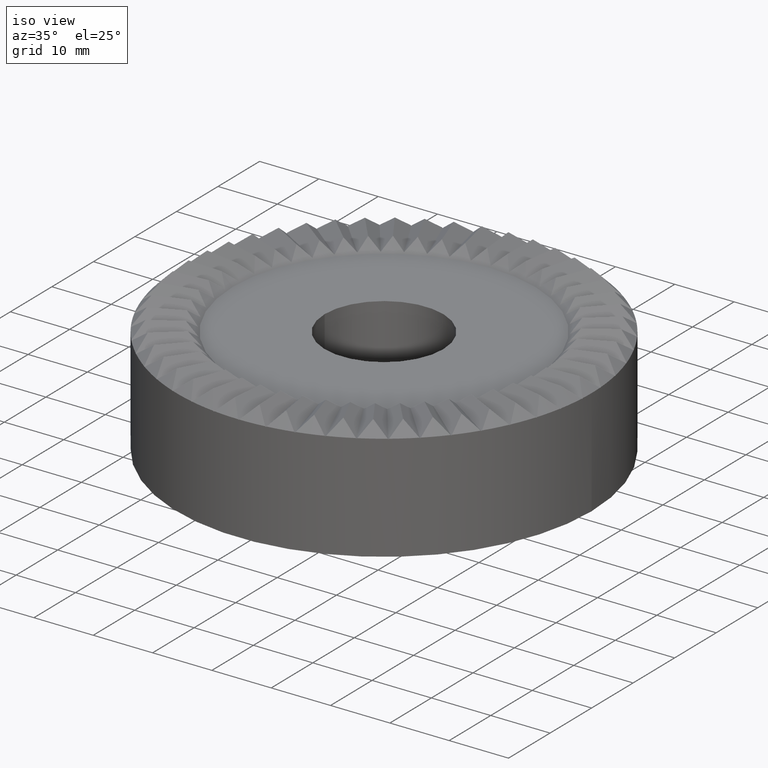
[diagram: clean part render]
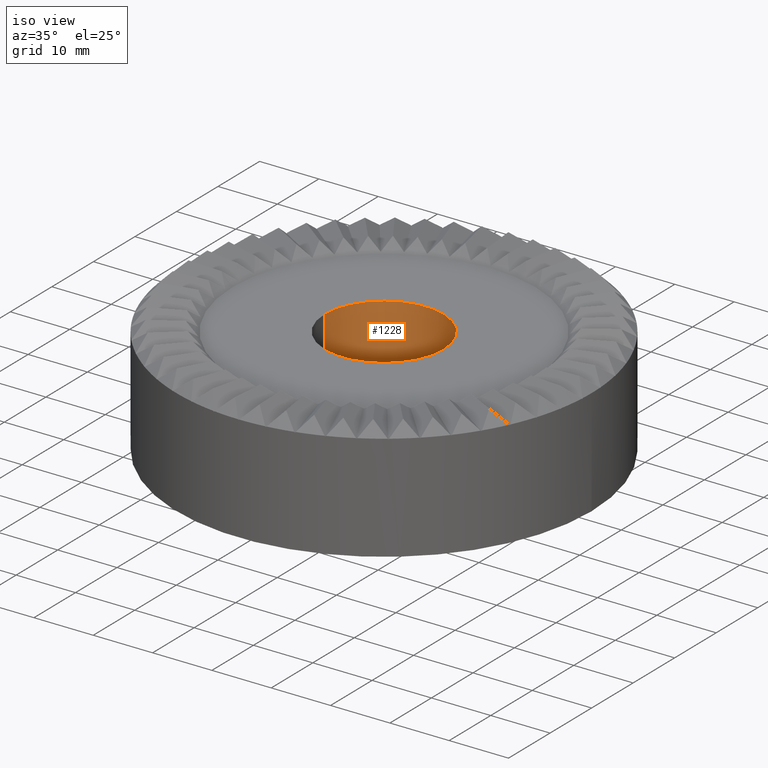
[diagram: same view with one face highlighted and labeled with its STEP entity id]
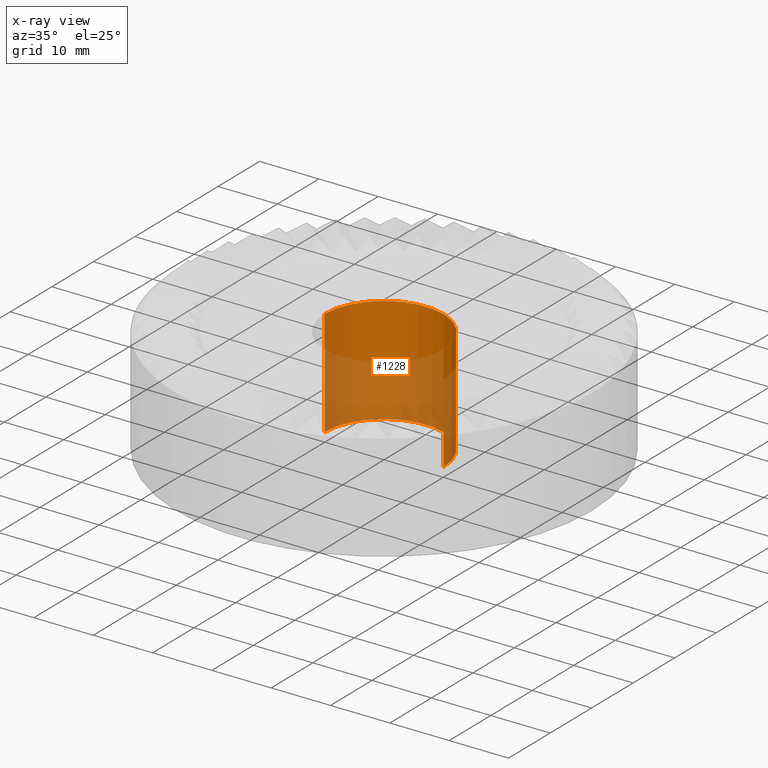
[diagram: x-ray of the same camera — body ghosted, the highlighted face saturated]
A machine part, iso view. The second image highlights one B-rep face of the part: STEP entity #1228.
The next image is the same camera in x-ray: the body ghosted, the highlighted face saturated — about 56% of this face is hidden behind the body in this view.
In plain terms, the highlighted cylindrical surface (partial cylindrical patch) has radius 10 mm, axis along (-0, -0, -1).
Its self-contained STEP definition (entity closure, byte-faithful):
#15 = CARTESIAN_POINT ( 'NONE',  ( -10.00000000000000000, 0.0000000000000000000, 18.00000000000000400 ) ) ;
#93 = CARTESIAN_POINT ( 'NONE',  ( -10.00000000000000000, 0.0000000000000000000, 21.00000000000000000 ) ) ;
#222 = VECTOR ( 'NONE', #3586, 1000.000000000000000 ) ;
#435 = EDGE_CURVE ( 'NONE', #4153, #666, #2999, .T. ) ;
#558 = CARTESIAN_POINT ( 'NONE',  ( 10.00000000000000000, 1.224646799147353100E-015, 21.00000000000000000 ) ) ;
#585 = DIRECTION ( 'NONE',  ( 0.0000000000000000000, 0.0000000000000000000, 1.000000000000000000 ) ) ;
#666 = VERTEX_POINT ( 'NONE', #4400 ) ;
#1228 = ADVANCED_FACE ( 'NONE', ( #5166 ), #1696, .F. ) ;
#1597 = DIRECTION ( 'NONE',  ( -0.0000000000000000000, -0.0000000000000000000, -1.000000000000000000 ) ) ;
#1603 = DIRECTION ( 'NONE',  ( 0.0000000000000000000, 0.0000000000000000000, 1.000000000000000000 ) ) ;
#1653 = AXIS2_PLACEMENT_3D ( 'NONE', #5060, #1597, #3767 ) ;
#1696 = CYLINDRICAL_SURFACE ( 'NONE', #1653, 10.00000000000000000 ) ;
#1702 = EDGE_LOOP ( 'NONE', ( #3543, #4268, #1750, #3096 ) ) ;
#1750 = ORIENTED_EDGE ( 'NONE', *, *, #4625, .T. ) ;
#1848 = CARTESIAN_POINT ( 'NONE',  ( 10.00000000000000000, 1.224646799147353100E-015, 0.0000000000000000000 ) ) ;
#2141 = AXIS2_PLACEMENT_3D ( 'NONE', #3187, #585, #3624 ) ;
#2507 = VERTEX_POINT ( 'NONE', #15 ) ;
#2538 = VECTOR ( 'NONE', #4852, 1000.000000000000000 ) ;
#2999 = CIRCLE ( 'NONE', #3195, 10.00000000000000000 ) ;
#3096 = ORIENTED_EDGE ( 'NONE', *, *, #435, .F. ) ;
#3187 = CARTESIAN_POINT ( 'NONE',  ( 0.0000000000000000000, 0.0000000000000000000, 18.00000000000000400 ) ) ;
#3195 = AXIS2_PLACEMENT_3D ( 'NONE', #4204, #1603, #4649 ) ;
#3340 = CIRCLE ( 'NONE', #2141, 10.00000000000000000 ) ;
#3382 = CARTESIAN_POINT ( 'NONE',  ( 10.00000000000000000, 1.224646799147353100E-015, 18.00000000000000400 ) ) ;
#3543 = ORIENTED_EDGE ( 'NONE', *, *, #4662, .F. ) ;
#3544 = LINE ( 'NONE', #558, #222 ) ;
#3586 = DIRECTION ( 'NONE',  ( -0.0000000000000000000, -0.0000000000000000000, -1.000000000000000000 ) ) ;
#3624 = DIRECTION ( 'NONE',  ( 1.000000000000000000, 0.0000000000000000000, 0.0000000000000000000 ) ) ;
#3767 = DIRECTION ( 'NONE',  ( -1.000000000000000000, 0.0000000000000000000, 0.0000000000000000000 ) ) ;
#3897 = VERTEX_POINT ( 'NONE', #3382 ) ;
#4153 = VERTEX_POINT ( 'NONE', #1848 ) ;
#4204 = CARTESIAN_POINT ( 'NONE',  ( 0.0000000000000000000, 0.0000000000000000000, 0.0000000000000000000 ) ) ;
#4268 = ORIENTED_EDGE ( 'NONE', *, *, #5099, .T. ) ;
#4400 = CARTESIAN_POINT ( 'NONE',  ( -10.00000000000000000, 0.0000000000000000000, 0.0000000000000000000 ) ) ;
#4625 = EDGE_CURVE ( 'NONE', #2507, #666, #4985, .T. ) ;
#4649 = DIRECTION ( 'NONE',  ( 1.000000000000000000, 0.0000000000000000000, 0.0000000000000000000 ) ) ;
#4662 = EDGE_CURVE ( 'NONE', #3897, #4153, #3544, .T. ) ;
#4852 = DIRECTION ( 'NONE',  ( -0.0000000000000000000, -0.0000000000000000000, -1.000000000000000000 ) ) ;
#4985 = LINE ( 'NONE', #93, #2538 ) ;
#5060 = CARTESIAN_POINT ( 'NONE',  ( 0.0000000000000000000, 0.0000000000000000000, 21.00000000000000000 ) ) ;
#5099 = EDGE_CURVE ( 'NONE', #3897, #2507, #3340, .T. ) ;
#5166 = FACE_OUTER_BOUND ( 'NONE', #1702, .T. ) ;